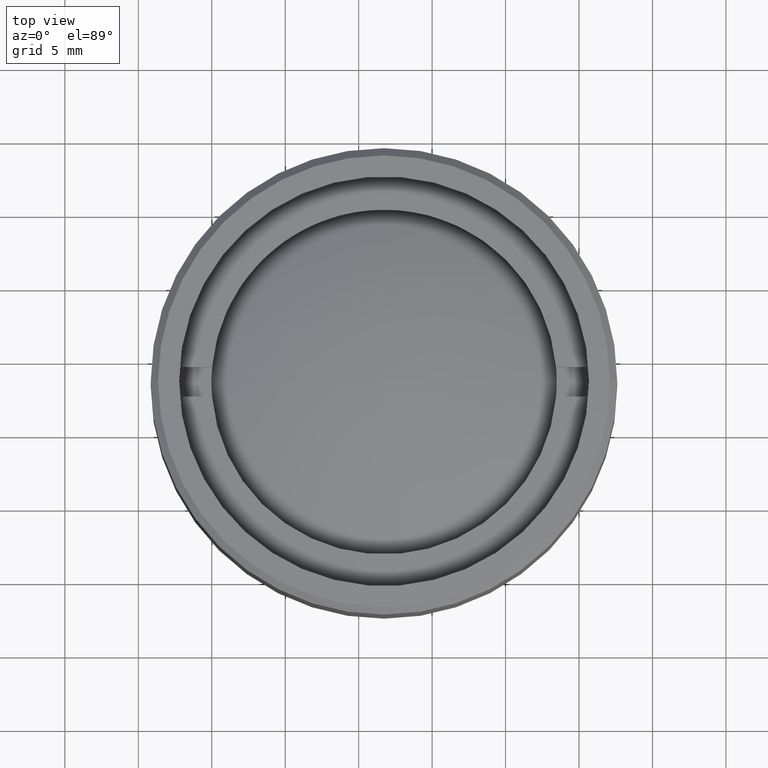
[diagram: clean part render]
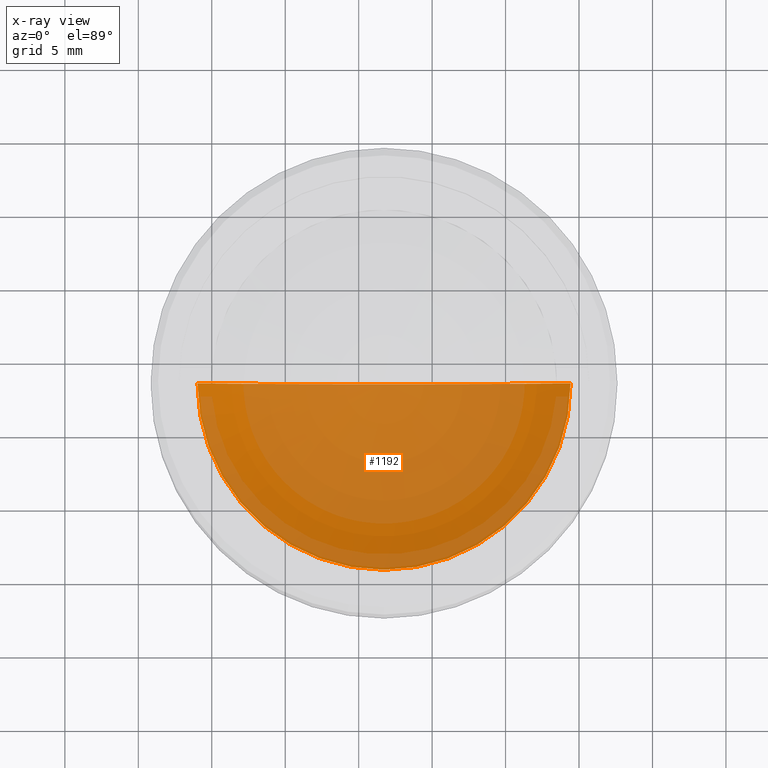
[diagram: x-ray — body ghosted, one internal face saturated and labeled with its STEP entity id]
A machine part, top view, then the same camera in x-ray: the body is ghosted and one INTERNAL B-rep face — a face not visible from any outside direction — is saturated and labeled: STEP entity #1192.
In plain terms, the highlighted spherical surface has radius 22.3 mm.
Its self-contained STEP definition (entity closure, byte-faithful):
#24 = CARTESIAN_POINT ( 'NONE',  ( 0.000000000000000000, 0.000000000000000000, -5.030302779823359494 ) ) ;
#41 = CIRCLE ( 'NONE', #268, 22.30000000000000071 ) ;
#229 = CARTESIAN_POINT ( 'NONE',  ( -12.69999999999999929, 0.000000000000000000, -5.030302779823359494 ) ) ;
#268 = AXIS2_PLACEMENT_3D ( 'NONE', #1494, #1625, #572 ) ;
#311 = DIRECTION ( 'NONE',  ( -0.000000000000000000, -0.000000000000000000, -1.000000000000000000 ) ) ;
#433 = VERTEX_POINT ( 'NONE', #229 ) ;
#511 = AXIS2_PLACEMENT_3D ( 'NONE', #690, #311, #1360 ) ;
#560 = DIRECTION ( 'NONE',  ( 0.000000000000000000, 0.000000000000000000, 1.000000000000000000 ) ) ;
#572 = DIRECTION ( 'NONE',  ( 0.000000000000000000, 0.000000000000000000, 1.000000000000000000 ) ) ;
#613 = ORIENTED_EDGE ( 'NONE', *, *, #950, .T. ) ;
#690 = CARTESIAN_POINT ( 'NONE',  ( 0.000000000000000000, 0.000000000000000000, 13.29999999999999893 ) ) ;
#784 = EDGE_CURVE ( 'NONE', #433, #859, #959, .T. ) ;
#829 = EDGE_LOOP ( 'NONE', ( #1338, #613 ) ) ;
#859 = VERTEX_POINT ( 'NONE', #1362 ) ;
#877 = AXIS2_PLACEMENT_3D ( 'NONE', #24, #560, #1483 ) ;
#950 = EDGE_CURVE ( 'NONE', #859, #433, #41, .T. ) ;
#959 = CIRCLE ( 'NONE', #877, 12.69999999999999929 ) ;
#1192 = ADVANCED_FACE ( 'NONE', ( #1620 ), #1377, .F. ) ;
#1338 = ORIENTED_EDGE ( 'NONE', *, *, #784, .T. ) ;
#1360 = DIRECTION ( 'NONE',  ( -1.000000000000000000, 0.000000000000000000, 0.000000000000000000 ) ) ;
#1362 = CARTESIAN_POINT ( 'NONE',  ( 12.69999999999999929, -1.555301434917139813E-15, -5.030302779823359494 ) ) ;
#1377 = SPHERICAL_SURFACE ( 'NONE', #511, 22.30000000000000071 ) ;
#1483 = DIRECTION ( 'NONE',  ( 1.000000000000000000, 0.000000000000000000, 0.000000000000000000 ) ) ;
#1494 = CARTESIAN_POINT ( 'NONE',  ( 0.000000000000000000, 0.000000000000000000, 13.29999999999999893 ) ) ;
#1620 = FACE_OUTER_BOUND ( 'NONE', #829, .T. ) ;
#1625 = DIRECTION ( 'NONE',  ( 0.000000000000000000, 1.000000000000000000, 0.000000000000000000 ) ) ;